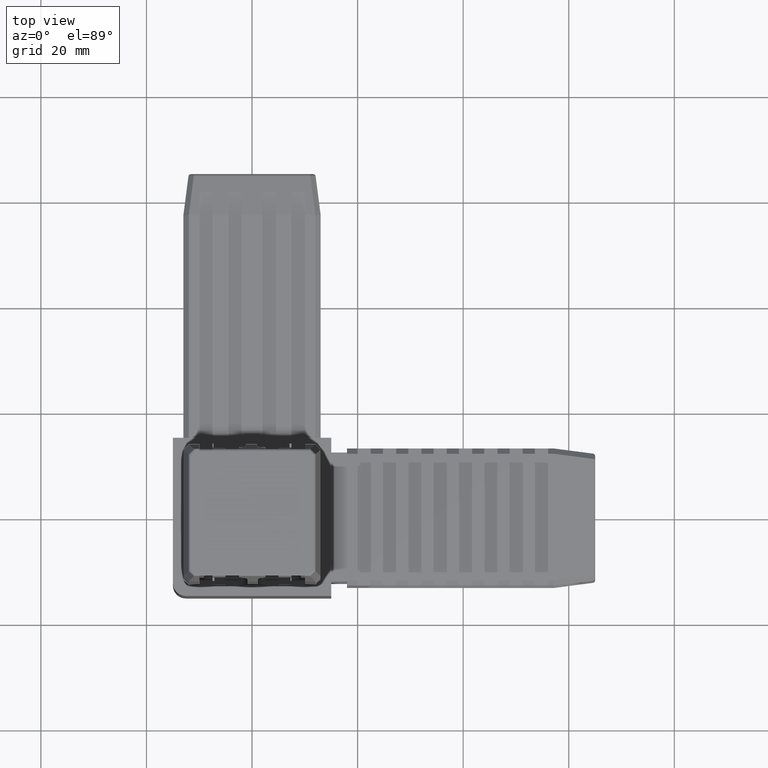
[diagram: clean part render]
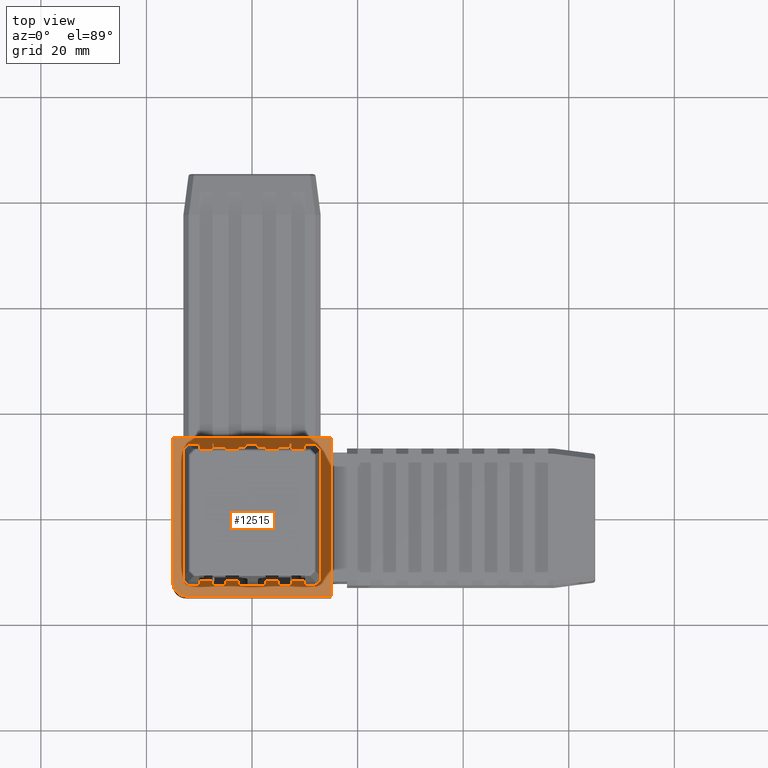
[diagram: same view with one face highlighted and labeled with its STEP entity id]
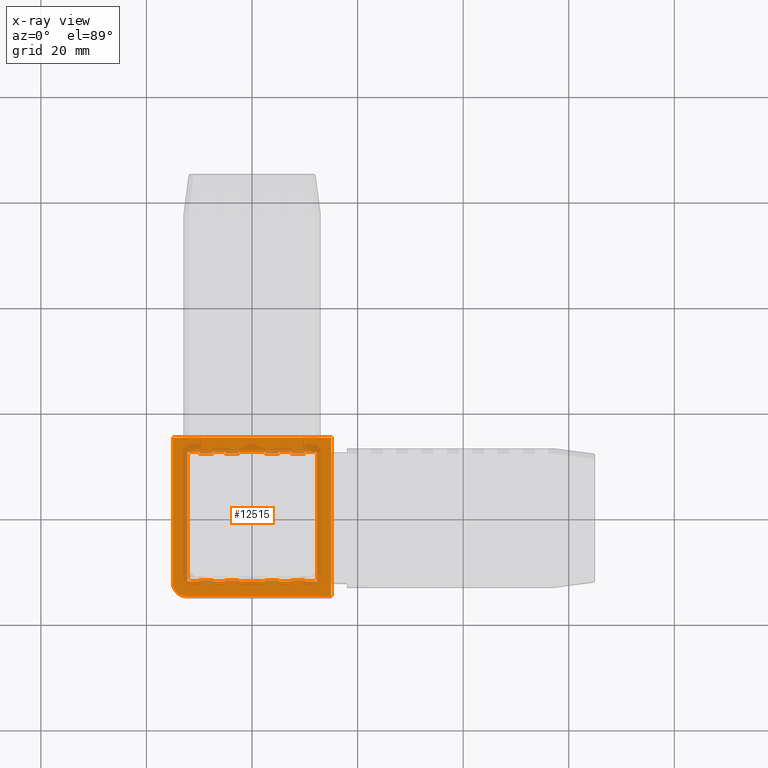
[diagram: x-ray of the same camera — body ghosted, the highlighted face saturated]
A machine part, top view. The second image highlights one B-rep face of the part: STEP entity #12515.
The next image is the same camera in x-ray: the body ghosted, the highlighted face saturated — about 21% of this face is hidden behind the body in this view.
In plain terms, the highlighted planar face has unit normal (0, 0, 1).
Its self-contained STEP definition (entity closure, byte-faithful):
#69=FACE_BOUND('',#2039,.T.);
#341=CIRCLE('',#13517,2.5);
#661=PLANE('',#13522);
#1347=FACE_OUTER_BOUND('',#2038,.T.);
#2038=EDGE_LOOP('',(#10751,#10752,#10753,#10754,#10755));
#2039=EDGE_LOOP('',(#10756,#10757,#10758,#10759,#10760,#10761,#10762,#10763,
#10764,#10765,#10766,#10767,#10768,#10769,#10770,#10771,#10772,#10773,#10774,
#10775,#10776,#10777,#10778,#10779,#10780,#10781,#10782,#10783,#10784,#10785,
#10786,#10787,#10788,#10789,#10790,#10791));
#2535=LINE('',#17838,#4025);
#2551=LINE('',#17880,#4041);
#2558=LINE('',#17897,#4048);
#3228=LINE('',#19312,#4718);
#3522=LINE('',#20552,#5012);
#3523=LINE('',#20554,#5013);
#3524=LINE('',#20556,#5014);
#3525=LINE('',#20557,#5015);
#3526=LINE('',#20560,#5016);
#3527=LINE('',#20562,#5017);
#3528=LINE('',#20564,#5018);
#3529=LINE('',#20566,#5019);
#3530=LINE('',#20568,#5020);
#3531=LINE('',#20570,#5021);
#3532=LINE('',#20572,#5022);
#3533=LINE('',#20574,#5023);
#3534=LINE('',#20576,#5024);
#3535=LINE('',#20578,#5025);
#3536=LINE('',#20579,#5026);
#3537=LINE('',#20581,#5027);
#3538=LINE('',#20583,#5028);
#3539=LINE('',#20585,#5029);
#3540=LINE('',#20587,#5030);
#3541=LINE('',#20589,#5031);
#3542=LINE('',#20591,#5032);
#3543=LINE('',#20593,#5033);
#3544=LINE('',#20595,#5034);
#3545=LINE('',#20597,#5035);
#3546=LINE('',#20599,#5036);
#3547=LINE('',#20601,#5037);
#3548=LINE('',#20603,#5038);
#3549=LINE('',#20605,#5039);
#3550=LINE('',#20607,#5040);
#3551=LINE('',#20609,#5041);
#3552=LINE('',#20610,#5042);
#3553=LINE('',#20612,#5043);
#3554=LINE('',#20614,#5044);
#3555=LINE('',#20616,#5045);
#3556=LINE('',#20618,#5046);
#3557=LINE('',#20619,#5047);
#4025=VECTOR('',#14258,10.);
#4041=VECTOR('',#14298,10.);
#4048=VECTOR('',#14311,10.);
#4718=VECTOR('',#15447,10.);
#5012=VECTOR('',#16481,10.);
#5013=VECTOR('',#16482,10.);
#5014=VECTOR('',#16483,10.);
#5015=VECTOR('',#16484,10.);
#5016=VECTOR('',#16485,10.);
#5017=VECTOR('',#16486,10.);
#5018=VECTOR('',#16487,10.);
#5019=VECTOR('',#16488,10.);
#5020=VECTOR('',#16489,10.);
#5021=VECTOR('',#16490,10.);
#5022=VECTOR('',#16491,10.);
#5023=VECTOR('',#16492,10.);
#5024=VECTOR('',#16493,10.);
#5025=VECTOR('',#16494,10.);
#5026=VECTOR('',#16495,10.);
#5027=VECTOR('',#16496,10.);
#5028=VECTOR('',#16497,10.);
#5029=VECTOR('',#16498,10.);
#5030=VECTOR('',#16499,10.);
#5031=VECTOR('',#16500,10.);
#5032=VECTOR('',#16501,10.);
#5033=VECTOR('',#16502,10.);
#5034=VECTOR('',#16503,10.);
#5035=VECTOR('',#16504,10.);
#5036=VECTOR('',#16505,10.);
#5037=VECTOR('',#16506,10.);
#5038=VECTOR('',#16507,10.);
#5039=VECTOR('',#16508,10.);
#5040=VECTOR('',#16509,10.);
#5041=VECTOR('',#16510,10.);
#5042=VECTOR('',#16511,10.);
#5043=VECTOR('',#16512,10.);
#5044=VECTOR('',#16513,10.);
#5045=VECTOR('',#16514,10.);
#5046=VECTOR('',#16515,10.);
#5047=VECTOR('',#16516,10.);
#5552=VERTEX_POINT('',#17835);
#5553=VERTEX_POINT('',#17837);
#5566=VERTEX_POINT('',#17877);
#5567=VERTEX_POINT('',#17879);
#5574=VERTEX_POINT('',#17895);
#6006=VERTEX_POINT('',#19311);
#6297=VERTEX_POINT('',#20533);
#6298=VERTEX_POINT('',#20534);
#6303=VERTEX_POINT('',#20551);
#6304=VERTEX_POINT('',#20553);
#6305=VERTEX_POINT('',#20555);
#6306=VERTEX_POINT('',#20558);
#6307=VERTEX_POINT('',#20559);
#6308=VERTEX_POINT('',#20561);
#6309=VERTEX_POINT('',#20563);
#6310=VERTEX_POINT('',#20565);
#6311=VERTEX_POINT('',#20567);
#6312=VERTEX_POINT('',#20569);
#6313=VERTEX_POINT('',#20571);
#6314=VERTEX_POINT('',#20573);
#6315=VERTEX_POINT('',#20575);
#6316=VERTEX_POINT('',#20577);
#6317=VERTEX_POINT('',#20580);
#6318=VERTEX_POINT('',#20582);
#6319=VERTEX_POINT('',#20584);
#6320=VERTEX_POINT('',#20586);
#6321=VERTEX_POINT('',#20588);
#6322=VERTEX_POINT('',#20590);
#6323=VERTEX_POINT('',#20592);
#6324=VERTEX_POINT('',#20594);
#6325=VERTEX_POINT('',#20596);
#6326=VERTEX_POINT('',#20598);
#6327=VERTEX_POINT('',#20600);
#6328=VERTEX_POINT('',#20602);
#6329=VERTEX_POINT('',#20604);
#6330=VERTEX_POINT('',#20606);
#6331=VERTEX_POINT('',#20608);
#6332=VERTEX_POINT('',#20611);
#6333=VERTEX_POINT('',#20613);
#6334=VERTEX_POINT('',#20615);
#6335=VERTEX_POINT('',#20617);
#6751=EDGE_CURVE('',#5552,#5553,#2535,.T.);
#6772=EDGE_CURVE('',#5566,#5567,#2551,.T.);
#6781=EDGE_CURVE('',#5574,#5566,#2558,.T.);
#7483=EDGE_CURVE('',#5553,#6006,#3228,.T.);
#7975=EDGE_CURVE('',#6297,#6298,#341,.T.);
#7984=EDGE_CURVE('',#6297,#6303,#3522,.T.);
#7985=EDGE_CURVE('',#6303,#6304,#3523,.T.);
#7986=EDGE_CURVE('',#6304,#6305,#3524,.T.);
#7987=EDGE_CURVE('',#6305,#6298,#3525,.T.);
#7988=EDGE_CURVE('',#6306,#6307,#3526,.T.);
#7989=EDGE_CURVE('',#6308,#6307,#3527,.T.);
#7990=EDGE_CURVE('',#6309,#6308,#3528,.T.);
#7991=EDGE_CURVE('',#6310,#6309,#3529,.T.);
#7992=EDGE_CURVE('',#6310,#6311,#3530,.T.);
#7993=EDGE_CURVE('',#6312,#6311,#3531,.T.);
#7994=EDGE_CURVE('',#6313,#6312,#3532,.T.);
#7995=EDGE_CURVE('',#6314,#6313,#3533,.T.);
#7996=EDGE_CURVE('',#6314,#6315,#3534,.T.);
#7997=EDGE_CURVE('',#6315,#6316,#3535,.T.);
#7998=EDGE_CURVE('',#6316,#6006,#3536,.T.);
#7999=EDGE_CURVE('',#6317,#5552,#3537,.T.);
#8000=EDGE_CURVE('',#6317,#6318,#3538,.T.);
#8001=EDGE_CURVE('',#6319,#6318,#3539,.T.);
#8002=EDGE_CURVE('',#6320,#6319,#3540,.T.);
#8003=EDGE_CURVE('',#6321,#6320,#3541,.T.);
#8004=EDGE_CURVE('',#6321,#6322,#3542,.T.);
#8005=EDGE_CURVE('',#6323,#6322,#3543,.T.);
#8006=EDGE_CURVE('',#6324,#6323,#3544,.T.);
#8007=EDGE_CURVE('',#6325,#6324,#3545,.T.);
#8008=EDGE_CURVE('',#6325,#6326,#3546,.T.);
#8009=EDGE_CURVE('',#6327,#6326,#3547,.T.);
#8010=EDGE_CURVE('',#6328,#6327,#3548,.T.);
#8011=EDGE_CURVE('',#6329,#6328,#3549,.T.);
#8012=EDGE_CURVE('',#6329,#6330,#3550,.T.);
#8013=EDGE_CURVE('',#6330,#6331,#3551,.T.);
#8014=EDGE_CURVE('',#6331,#5567,#3552,.T.);
#8015=EDGE_CURVE('',#6332,#5574,#3553,.T.);
#8016=EDGE_CURVE('',#6332,#6333,#3554,.T.);
#8017=EDGE_CURVE('',#6334,#6333,#3555,.T.);
#8018=EDGE_CURVE('',#6335,#6334,#3556,.T.);
#8019=EDGE_CURVE('',#6306,#6335,#3557,.T.);
#10751=ORIENTED_EDGE('',*,*,#7975,.F.);
#10752=ORIENTED_EDGE('',*,*,#7984,.T.);
#10753=ORIENTED_EDGE('',*,*,#7985,.T.);
#10754=ORIENTED_EDGE('',*,*,#7986,.T.);
#10755=ORIENTED_EDGE('',*,*,#7987,.T.);
#10756=ORIENTED_EDGE('',*,*,#7988,.T.);
#10757=ORIENTED_EDGE('',*,*,#7989,.F.);
#10758=ORIENTED_EDGE('',*,*,#7990,.F.);
#10759=ORIENTED_EDGE('',*,*,#7991,.F.);
#10760=ORIENTED_EDGE('',*,*,#7992,.T.);
#10761=ORIENTED_EDGE('',*,*,#7993,.F.);
#10762=ORIENTED_EDGE('',*,*,#7994,.F.);
#10763=ORIENTED_EDGE('',*,*,#7995,.F.);
#10764=ORIENTED_EDGE('',*,*,#7996,.T.);
#10765=ORIENTED_EDGE('',*,*,#7997,.T.);
#10766=ORIENTED_EDGE('',*,*,#7998,.T.);
#10767=ORIENTED_EDGE('',*,*,#7483,.F.);
#10768=ORIENTED_EDGE('',*,*,#6751,.F.);
#10769=ORIENTED_EDGE('',*,*,#7999,.F.);
#10770=ORIENTED_EDGE('',*,*,#8000,.T.);
#10771=ORIENTED_EDGE('',*,*,#8001,.F.);
#10772=ORIENTED_EDGE('',*,*,#8002,.F.);
#10773=ORIENTED_EDGE('',*,*,#8003,.F.);
#10774=ORIENTED_EDGE('',*,*,#8004,.T.);
#10775=ORIENTED_EDGE('',*,*,#8005,.F.);
#10776=ORIENTED_EDGE('',*,*,#8006,.F.);
#10777=ORIENTED_EDGE('',*,*,#8007,.F.);
#10778=ORIENTED_EDGE('',*,*,#8008,.T.);
#10779=ORIENTED_EDGE('',*,*,#8009,.F.);
#10780=ORIENTED_EDGE('',*,*,#8010,.F.);
#10781=ORIENTED_EDGE('',*,*,#8011,.F.);
#10782=ORIENTED_EDGE('',*,*,#8012,.T.);
#10783=ORIENTED_EDGE('',*,*,#8013,.T.);
#10784=ORIENTED_EDGE('',*,*,#8014,.T.);
#10785=ORIENTED_EDGE('',*,*,#6772,.F.);
#10786=ORIENTED_EDGE('',*,*,#6781,.F.);
#10787=ORIENTED_EDGE('',*,*,#8015,.F.);
#10788=ORIENTED_EDGE('',*,*,#8016,.T.);
#10789=ORIENTED_EDGE('',*,*,#8017,.F.);
#10790=ORIENTED_EDGE('',*,*,#8018,.F.);
#10791=ORIENTED_EDGE('',*,*,#8019,.F.);
#12515=ADVANCED_FACE('',(#1347,#69),#661,.T.);
#13517=AXIS2_PLACEMENT_3D('',#20535,#16463,#16464);
#13522=AXIS2_PLACEMENT_3D('',#20550,#16479,#16480);
#14258=DIRECTION('',(-1.,0.,0.));
#14298=DIRECTION('',(-1.11022302462515E-15,-1.,0.));
#14311=DIRECTION('',(1.,0.,0.));
#15447=DIRECTION('',(0.,1.,0.));
#16463=DIRECTION('center_axis',(0.,0.,-1.));
#16464=DIRECTION('ref_axis',(-0.707106781186547,-0.707106781186547,0.));
#16479=DIRECTION('center_axis',(0.,0.,1.));
#16480=DIRECTION('ref_axis',(1.,0.,0.));
#16481=DIRECTION('',(1.,0.,0.));
#16482=DIRECTION('',(0.,1.,0.));
#16483=DIRECTION('',(-1.,0.,0.));
#16484=DIRECTION('',(0.,-1.,0.));
#16485=DIRECTION('',(-1.,-3.62521803959235E-16,0.));
#16486=DIRECTION('',(5.55111512312577E-16,-1.,0.));
#16487=DIRECTION('',(1.,0.,0.));
#16488=DIRECTION('',(1.11022302462515E-15,1.,0.));
#16489=DIRECTION('',(-1.,-3.62521803959235E-16,0.));
#16490=DIRECTION('',(-1.4432899320127E-14,-1.,0.));
#16491=DIRECTION('',(1.,0.,0.));
#16492=DIRECTION('',(-2.22044604925031E-15,1.,0.));
#16493=DIRECTION('',(-1.,-3.62521803959235E-16,0.));
#16494=DIRECTION('',(0.,1.,0.));
#16495=DIRECTION('',(1.,2.71891352969426E-16,0.));
#16496=DIRECTION('',(0.,-1.,0.));
#16497=DIRECTION('',(1.,2.71891352969426E-16,0.));
#16498=DIRECTION('',(5.55111512312579E-16,1.,0.));
#16499=DIRECTION('',(-1.,0.,0.));
#16500=DIRECTION('',(0.,-1.,0.));
#16501=DIRECTION('',(1.,2.71891352969426E-16,0.));
#16502=DIRECTION('',(1.11022302462516E-15,1.,0.));
#16503=DIRECTION('',(-1.,0.,0.));
#16504=DIRECTION('',(1.11022302462516E-15,-1.,0.));
#16505=DIRECTION('',(1.,2.71891352969426E-16,0.));
#16506=DIRECTION('',(0.,1.,0.));
#16507=DIRECTION('',(-1.,8.89245514317306E-16,0.));
#16508=DIRECTION('',(-2.22044604925032E-15,-1.,0.));
#16509=DIRECTION('',(1.,2.71891352969426E-16,0.));
#16510=DIRECTION('',(1.81260901979617E-16,-1.,0.));
#16511=DIRECTION('',(-1.,-3.62521803959235E-16,0.));
#16512=DIRECTION('',(-1.11022302462515E-15,1.,0.));
#16513=DIRECTION('',(-1.,-3.62521803959235E-16,0.));
#16514=DIRECTION('',(5.55111512312577E-16,-1.,0.));
#16515=DIRECTION('',(1.,0.,0.));
#16516=DIRECTION('',(5.55111512312577E-16,1.,0.));
#17835=CARTESIAN_POINT('',(-7.501,12.,15.));
#17837=CARTESIAN_POINT('',(-9.998,12.,15.));
#17838=CARTESIAN_POINT('',(-9.998,12.,15.));
#17877=CARTESIAN_POINT('',(9.99900000000001,-12.,15.));
#17879=CARTESIAN_POINT('',(9.99900000000001,-12.25,15.));
#17880=CARTESIAN_POINT('',(9.99900000000001,-13.,15.));
#17895=CARTESIAN_POINT('',(7.502,-12.,15.));
#17897=CARTESIAN_POINT('',(9.99900000000001,-12.,15.));
#19311=CARTESIAN_POINT('',(-9.998,12.25,15.));
#19312=CARTESIAN_POINT('',(-9.998,13.,15.));
#20533=CARTESIAN_POINT('',(-12.5,-15.,15.));
#20534=CARTESIAN_POINT('',(-15.,-12.5,15.));
#20535=CARTESIAN_POINT('Origin',(-12.5,-12.5,15.));
#20550=CARTESIAN_POINT('Origin',(0.,0.,15.));
#20551=CARTESIAN_POINT('',(15.,-15.,15.));
#20552=CARTESIAN_POINT('',(15.,-15.,15.));
#20553=CARTESIAN_POINT('',(15.,15.,15.));
#20554=CARTESIAN_POINT('',(15.,15.,15.));
#20555=CARTESIAN_POINT('',(-15.,15.,15.));
#20556=CARTESIAN_POINT('',(-15.,15.,15.));
#20557=CARTESIAN_POINT('',(-15.,-15.,15.));
#20558=CARTESIAN_POINT('',(2.502,-12.25,15.));
#20559=CARTESIAN_POINT('',(-2.501,-12.25,15.));
#20560=CARTESIAN_POINT('',(-6.125,-12.25,15.));
#20561=CARTESIAN_POINT('',(-2.501,-12.,15.));
#20562=CARTESIAN_POINT('',(-2.501,-13.,15.));
#20563=CARTESIAN_POINT('',(-4.998,-12.,15.));
#20564=CARTESIAN_POINT('',(-2.501,-12.,15.));
#20565=CARTESIAN_POINT('',(-4.998,-12.25,15.));
#20566=CARTESIAN_POINT('',(-4.998,-12.,15.));
#20567=CARTESIAN_POINT('',(-7.50099999999999,-12.25,15.));
#20568=CARTESIAN_POINT('',(-6.125,-12.25,15.));
#20569=CARTESIAN_POINT('',(-7.50099999999999,-12.,15.));
#20570=CARTESIAN_POINT('',(-7.501,-13.,15.));
#20571=CARTESIAN_POINT('',(-9.998,-12.,15.));
#20572=CARTESIAN_POINT('',(-7.50099999999999,-12.,15.));
#20573=CARTESIAN_POINT('',(-9.99799999999999,-12.25,15.));
#20574=CARTESIAN_POINT('',(-9.998,-12.,15.));
#20575=CARTESIAN_POINT('',(-12.25,-12.25,15.));
#20576=CARTESIAN_POINT('',(-6.125,-12.25,15.));
#20577=CARTESIAN_POINT('',(-12.25,12.25,15.));
#20578=CARTESIAN_POINT('',(-12.25,6.125,15.));
#20579=CARTESIAN_POINT('',(6.125,12.25,15.));
#20580=CARTESIAN_POINT('',(-7.501,12.25,15.));
#20581=CARTESIAN_POINT('',(-7.501,12.,15.));
#20582=CARTESIAN_POINT('',(-4.998,12.25,15.));
#20583=CARTESIAN_POINT('',(6.125,12.25,15.));
#20584=CARTESIAN_POINT('',(-4.998,12.,15.));
#20585=CARTESIAN_POINT('',(-4.998,13.,15.));
#20586=CARTESIAN_POINT('',(-2.501,12.,15.));
#20587=CARTESIAN_POINT('',(-4.998,12.,15.));
#20588=CARTESIAN_POINT('',(-2.501,12.25,15.));
#20589=CARTESIAN_POINT('',(-2.501,12.,15.));
#20590=CARTESIAN_POINT('',(2.502,12.25,15.));
#20591=CARTESIAN_POINT('',(6.125,12.25,15.));
#20592=CARTESIAN_POINT('',(2.502,12.,15.));
#20593=CARTESIAN_POINT('',(2.502,13.,15.));
#20594=CARTESIAN_POINT('',(4.999,12.,15.));
#20595=CARTESIAN_POINT('',(2.502,12.,15.));
#20596=CARTESIAN_POINT('',(4.999,12.25,15.));
#20597=CARTESIAN_POINT('',(4.999,12.,15.));
#20598=CARTESIAN_POINT('',(7.502,12.25,15.));
#20599=CARTESIAN_POINT('',(6.125,12.25,15.));
#20600=CARTESIAN_POINT('',(7.502,12.,15.));
#20601=CARTESIAN_POINT('',(7.502,13.,15.));
#20602=CARTESIAN_POINT('',(9.999,12.,15.));
#20603=CARTESIAN_POINT('',(7.502,12.,15.));
#20604=CARTESIAN_POINT('',(9.999,12.25,15.));
#20605=CARTESIAN_POINT('',(9.999,12.,15.));
#20606=CARTESIAN_POINT('',(12.25,12.25,15.));
#20607=CARTESIAN_POINT('',(6.125,12.25,15.));
#20608=CARTESIAN_POINT('',(12.25,-12.25,15.));
#20609=CARTESIAN_POINT('',(12.25,-6.125,15.));
#20610=CARTESIAN_POINT('',(-6.125,-12.25,15.));
#20611=CARTESIAN_POINT('',(7.502,-12.25,15.));
#20612=CARTESIAN_POINT('',(7.502,-12.,15.));
#20613=CARTESIAN_POINT('',(4.999,-12.25,15.));
#20614=CARTESIAN_POINT('',(-6.125,-12.25,15.));
#20615=CARTESIAN_POINT('',(4.999,-12.,15.));
#20616=CARTESIAN_POINT('',(4.999,-13.,15.));
#20617=CARTESIAN_POINT('',(2.502,-12.,15.));
#20618=CARTESIAN_POINT('',(4.999,-12.,15.));
#20619=CARTESIAN_POINT('',(2.502,-12.,15.));